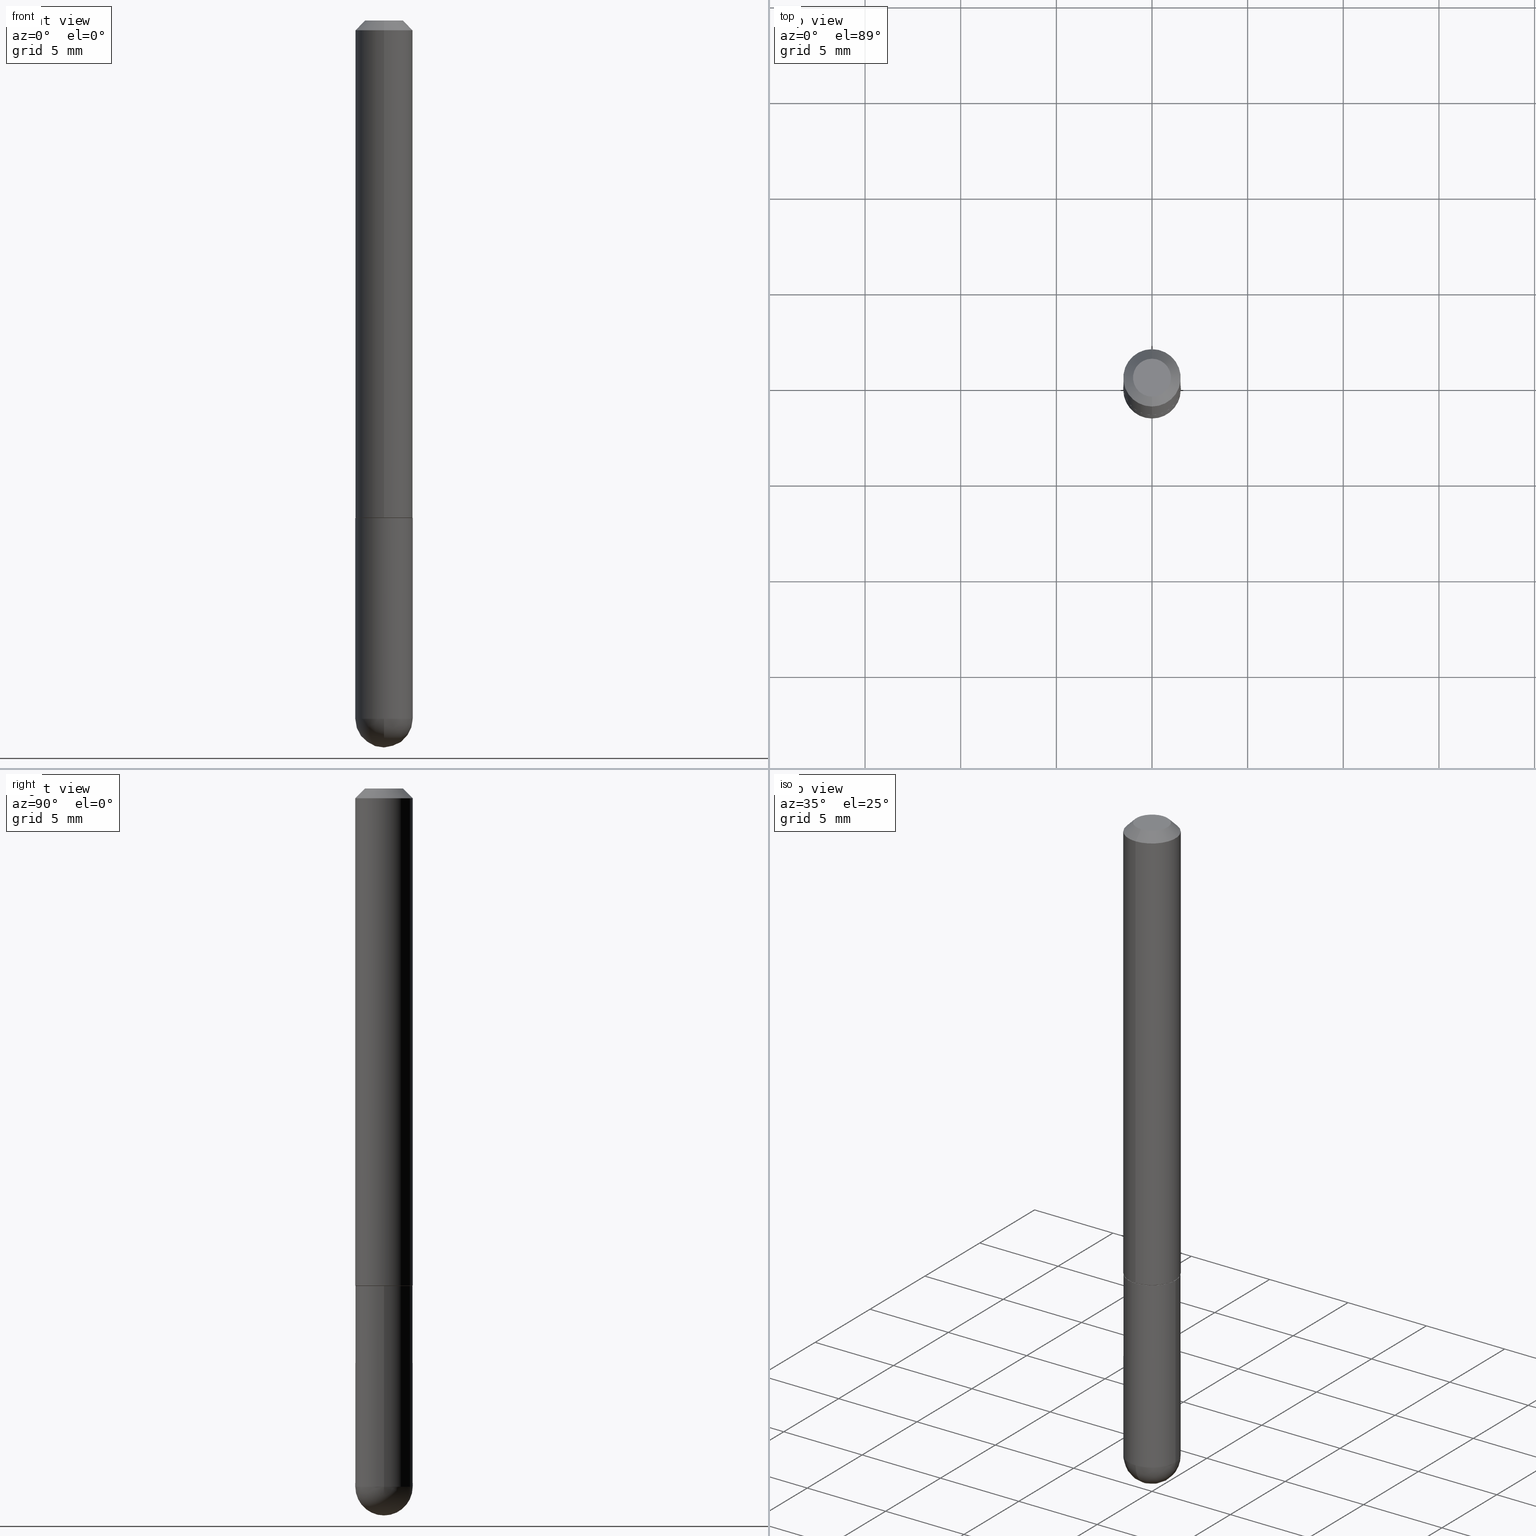
[diagram: canonical four-view strip — front | top / right | iso, engineering-drawing reading convention]
A machine part, canonical four-view strip (front | top / right | iso — engineering-drawing reading convention). The complete STEP part file that produces these views, byte-faithful:
ISO-10303-21;
HEADER;
FILE_DESCRIPTION (( 'STEP AP203' ),
    '1' );
FILE_NAME ('40522.STEP',
    '2024-04-10T11:41:17',
    ( '' ),
    ( '' ),
    'SwSTEP 2.0',
    'SolidWorks 2023',
    '' );
FILE_SCHEMA (( 'CONFIG_CONTROL_DESIGN' ));
ENDSEC;

DATA;
#1 = FACE_OUTER_BOUND ( 'NONE', #50, .T. ) ;
#2 = CIRCLE ( 'NONE', #101, 0.05905000000000025506 ) ;
#3 = DIRECTION ( 'NONE',  ( -2.460704223039053504E-29, 3.469663354762261233E-15, 1.000000000000000000 ) ) ;
#4 = EDGE_CURVE ( 'NONE', #183, #295, #330, .T. ) ;
#5 = EDGE_CURVE ( 'NONE', #81, #20, #37, .T. ) ;
#6 = CARTESIAN_POINT ( 'NONE',  ( 3.514260947928350449E-29, -5.017433257984542594E-15, -1.437049999999999939 ) ) ;
#7 = ORIENTED_EDGE ( 'NONE', *, *, #145, .T. ) ;
#8 = FACE_OUTER_BOUND ( 'NONE', #271, .T. ) ;
#9 = AXIS2_PLACEMENT_3D ( 'NONE', #278, #208, #184 ) ;
#10 = CARTESIAN_POINT ( 'NONE',  ( -4.123439461173497259E-16, -0.05905000000000367594, -1.022699999999999498 ) ) ;
#11 = MECHANICAL_CONTEXT ( 'NONE', #199, 'mechanical' ) ;
#12 = AXIS2_PLACEMENT_3D ( 'NONE', #68, #257, #74 ) ;
#13 = ADVANCED_FACE ( 'NONE', ( #147 ), #286, .T. ) ;
#14 = ORGANIZATION ( 'UNSPECIFIED', 'UNSPECIFIED', '' ) ;
#15 = DIRECTION ( 'NONE',  ( 6.982962677686266711E-15, 1.000000000000000000, 0.000000000000000000 ) ) ;
#16 = ORIENTED_EDGE ( 'NONE', *, *, #31, .T. ) ;
#17 = AXIS2_PLACEMENT_3D ( 'NONE', #36, #230, #193 ) ;
#18 = AXIS2_PLACEMENT_3D ( 'NONE', #6, #285, #359 ) ;
#19 = PERSON_AND_ORGANIZATION ( #121, #14 ) ;
#20 = VERTEX_POINT ( 'NONE', #53 ) ;
#21 = CARTESIAN_POINT ( 'NONE',  ( 2.519022913125078561E-29, -3.551894376270126226E-15, -1.023699999999999832 ) ) ;
#22 = APPROVAL ( #27, 'UNSPECIFIED' ) ;
#23 = PERSON_AND_ORGANIZATION_ROLE ( 'design_owner' ) ;
#24 = ORIENTED_EDGE ( 'NONE', *, *, #283, .F. ) ;
#25 = ADVANCED_FACE ( 'NONE', ( #290 ), #228, .F. ) ;
#26 = LOCAL_TIME ( 7, 41, 17.00000000000000000, #408 ) ;
#27 = APPROVAL_STATUS ( 'not_yet_approved' ) ;
#28 = ORIENTED_EDGE ( 'NONE', *, *, #136, .T. ) ;
#29 = LOCAL_TIME ( 7, 41, 17.00000000000000000, #141 ) ;
#30 = VERTEX_POINT ( 'NONE', #284 ) ;
#31 = EDGE_CURVE ( 'NONE', #213, #30, #220, .T. ) ;
#32 = PERSON_AND_ORGANIZATION_ROLE ( 'creator' ) ;
#33 = DATE_TIME_ROLE ( 'classification_date' ) ;
#34 = DIRECTION ( 'NONE',  ( 1.000000000000000000, -6.982962677686266711E-15, 4.876176775795935793E-29 ) ) ;
#35 = DIRECTION ( 'NONE',  ( -2.460704223039053504E-29, 3.469663354762261233E-15, 1.000000000000000000 ) ) ;
#36 = CARTESIAN_POINT ( 'NONE',  ( 0.000000000000000000, 0.000000000000000000, 0.000000000000000000 ) ) ;
#37 = CIRCLE ( 'NONE', #249, 0.05804999999999999050 ) ;
#38 = DIRECTION ( 'NONE',  ( -6.982962677686265922E-15, -1.000000000000000000, 2.353012914439503496E-15 ) ) ;
#39 = AXIS2_PLACEMENT_3D ( 'NONE', #372, #297, #390 ) ;
#40 = DIRECTION ( 'NONE',  ( -2.460704223039053504E-29, 3.469663354762261233E-15, 1.000000000000000000 ) ) ;
#41 = DIRECTION ( 'NONE',  ( -2.460704223039053224E-29, 3.469663354762261233E-15, 1.000000000000000000 ) ) ;
#42 = CARTESIAN_POINT ( 'NONE',  ( 4.921408446078123403E-31, -6.939326709524544899E-17, -0.02000000000000006981 ) ) ;
#43 = LOCAL_TIME ( 7, 41, 17.00000000000000000, #191 ) ;
#44 = AXIS2_PLACEMENT_3D ( 'NONE', #357, #293, #73 ) ;
#45 = CLOSED_SHELL ( 'NONE', ( #114, #221, #340, #13, #144, #411, #25, #172 ) ) ;
#46 = DIRECTION ( 'NONE',  ( -1.000000000000000000, 6.982962677686265922E-15, -4.883557194083112340E-29 ) ) ;
#47 = AXIS2_PLACEMENT_3D ( 'NONE', #322, #40, #168 ) ;
#48 = DIMENSIONAL_EXPONENTS ( 1.000000000000000000, 0.000000000000000000, 0.000000000000000000, 0.000000000000000000, 0.000000000000000000, 0.000000000000000000, 0.000000000000000000 ) ;
#49 = APPROVAL_ROLE ( '' ) ;
#50 = EDGE_LOOP ( 'NONE', ( #275, #51, #83, #216 ) ) ;
#51 = ORIENTED_EDGE ( 'NONE', *, *, #97, .T. ) ;
#52 = CIRCLE ( 'NONE', #336, 0.05905000000000001914 ) ;
#53 = CARTESIAN_POINT ( 'NONE',  ( 4.160227717875641831E-16, 0.05804999999999643778, -1.023699999999999832 ) ) ;
#54 = CARTESIAN_POINT ( 'NONE',  ( -0.05905000000000001914, -3.876255866812795611E-15, -1.023699999999999832 ) ) ;
#55 = EDGE_LOOP ( 'NONE', ( #337, #113, #7, #169, #152 ) ) ;
#56 = DATE_AND_TIME ( #342, #65 ) ;
#57 = VERTEX_POINT ( 'NONE', #103 ) ;
#58 = CALENDAR_DATE ( 2024, 10, 4 ) ;
#59 = VERTEX_POINT ( 'NONE', #321 ) ;
#60 = VECTOR ( 'NONE', #254, 39.37007874015748143 ) ;
#61 = DATE_AND_TIME ( #276, #171 ) ;
#62 = CC_DESIGN_PERSON_AND_ORGANIZATION_ASSIGNMENT ( #281, #189, ( #379 ) ) ;
#63 = DIRECTION ( 'NONE',  ( -2.460704223039053504E-29, 3.469663354762261233E-15, 1.000000000000000000 ) ) ;
#64 = LINE ( 'NONE', #188, #99 ) ;
#65 = LOCAL_TIME ( 7, 41, 17.00000000000000000, #374 ) ;
#66 = CIRCLE ( 'NONE', #367, 0.05905000000000001914 ) ;
#67 = DIRECTION ( 'NONE',  ( -4.937700262164715281E-15, -0.7071067811865691111, 0.7071067811865257013 ) ) ;
#68 = CARTESIAN_POINT ( 'NONE',  ( 0.000000000000000000, 0.000000000000000000, 0.000000000000000000 ) ) ;
#69 = DIRECTION ( 'NONE',  ( -1.000000000000000000, 7.105427357601001070E-15, -4.926315508542082329E-29 ) ) ;
#70 = ORIENTED_EDGE ( 'NONE', *, *, #362, .F. ) ;
#71 = EDGE_CURVE ( 'NONE', #59, #378, #351, .T. ) ;
#72 = ADVANCED_FACE ( 'NONE', ( #8 ), #173, .T. ) ;
#73 = DIRECTION ( 'NONE',  ( 1.000000000000000000, -6.982962677686270655E-15, 0.000000000000000000 ) ) ;
#74 = DIRECTION ( 'NONE',  ( 1.000000000000000000, -6.982962677686266711E-15, 4.876176775795935793E-29 ) ) ;
#75 = CARTESIAN_POINT ( 'NONE',  ( 0.000000000000000000, 0.000000000000000000, 0.000000000000000000 ) ) ;
#76 = CARTESIAN_POINT ( 'NONE',  ( 4.921408446078123403E-31, -6.939326709524544899E-17, -0.02000000000000006981 ) ) ;
#77 = CARTESIAN_POINT ( 'NONE',  ( 3.907277292852995132E-45, -5.509372769378781280E-31, -1.587869544120737693E-16 ) ) ;
#78 = CC_DESIGN_PERSON_AND_ORGANIZATION_ASSIGNMENT ( #120, #32, ( #379 ) ) ;
#79 = CONICAL_SURFACE ( 'NONE', #267, 0.05804999999999999050, 0.7853981633974824739 ) ;
#80 = DIRECTION ( 'NONE',  ( 1.000000000000000000, -6.982962677686265922E-15, 4.883557194083112340E-29 ) ) ;
#81 = VERTEX_POINT ( 'NONE', #201 ) ;
#82 = PERSON_AND_ORGANIZATION ( #121, #14 ) ;
#83 = ORIENTED_EDGE ( 'NONE', *, *, #178, .F. ) ;
#84 = DIRECTION ( 'NONE',  ( -2.460704223039053504E-29, 3.469663354762261233E-15, 1.000000000000000000 ) ) ;
#85 = ORIENTED_EDGE ( 'NONE', *, *, #409, .T. ) ;
#86 = EDGE_CURVE ( 'NONE', #59, #401, #368, .T. ) ;
#87 = CARTESIAN_POINT ( 'NONE',  ( -4.195754854663065087E-16, -0.05905000000000539678, -1.437049999999999716 ) ) ;
#88 = EDGE_LOOP ( 'NONE', ( #388, #395, #159, #311 ) ) ;
#89 = DIRECTION ( 'NONE',  ( -6.982962677686265922E-15, -1.000000000000000000, 2.353012914439503496E-15 ) ) ;
#90 = APPROVAL_ROLE ( '' ) ;
#91 = EDGE_LOOP ( 'NONE', ( #92, #119, #28, #118 ) ) ;
#92 = ORIENTED_EDGE ( 'NONE', *, *, #97, .F. ) ;
#93 = FACE_OUTER_BOUND ( 'NONE', #88, .T. ) ;
#94 = APPROVAL_DATE_TIME ( #186, #22 ) ;
#95 = AXIS2_PLACEMENT_3D ( 'NONE', #76, #224, #354 ) ;
#96 = PERSON_AND_ORGANIZATION ( #121, #14 ) ;
#97 = EDGE_CURVE ( 'NONE', #295, #213, #64, .T. ) ;
#98 = DIRECTION ( 'NONE',  ( 1.000000000000000000, -6.982962677686270655E-15, 0.000000000000000000 ) ) ;
#99 = VECTOR ( 'NONE', #310, 39.37007874015748143 ) ;
#100 = FACE_OUTER_BOUND ( 'NONE', #343, .T. ) ;
#101 = AXIS2_PLACEMENT_3D ( 'NONE', #151, #80, #15 ) ;
#102 = CARTESIAN_POINT ( 'NONE',  ( 0.05905000000000001914, -4.123439461173741806E-16, 2.879382386107500921E-30 ) ) ;
#103 = CARTESIAN_POINT ( 'NONE',  ( 0.05905000000000001914, -3.986573392691101744E-15, -1.023699999999999832 ) ) ;
#104 = CARTESIAN_POINT ( 'NONE',  ( 3.183141170014464762E-29, -5.491615626124592102E-15, -1.437049999999999939 ) ) ;
#105 = DIRECTION ( 'NONE',  ( -2.445468806185136877E-29, 3.491481338843145188E-15, 1.000000000000000000 ) ) ;
#106 = DIRECTION ( 'NONE',  ( 5.024295867788231995E-15, 0.7071067811865739960, 0.7071067811865208164 ) ) ;
#107 = PRODUCT_DEFINITION ( 'UNKNOWN', '', #379, #177 ) ;
#108 = CARTESIAN_POINT ( 'NONE',  ( 2.519022913125078561E-29, -3.551894376270126226E-15, -1.023699999999999832 ) ) ;
#109 = CC_DESIGN_APPROVAL ( #312, ( #327 ) ) ;
#110 = AXIS2_PLACEMENT_3D ( 'NONE', #42, #35, #174 ) ;
#111 = DIRECTION ( 'NONE',  ( 1.000000000000000000, -6.982962677686262766E-15, 0.000000000000000000 ) ) ;
#112 = ORIENTED_EDGE ( 'NONE', *, *, #232, .T. ) ;
#113 = ORIENTED_EDGE ( 'NONE', *, *, #71, .T. ) ;
#114 = ADVANCED_FACE ( 'NONE', ( #93 ), #79, .T. ) ;
#115 = CIRCLE ( 'NONE', #246, 0.03905000000000016097 ) ;
#116 = DATE_AND_TIME ( #394, #29 ) ;
#117 = ORIENTED_EDGE ( 'NONE', *, *, #298, .T. ) ;
#118 = ORIENTED_EDGE ( 'NONE', *, *, #31, .F. ) ;
#119 = ORIENTED_EDGE ( 'NONE', *, *, #362, .T. ) ;
#120 = PERSON_AND_ORGANIZATION ( #121, #14 ) ;
#121 = PERSON ( 'UNSPECIFIED', 'UNSPECIFIED', 'UNSPECIFIED', ('UNSPECIFIED'), ('UNSPECIFIED'), ('UNSPECIFIED') ) ;
#122 = CARTESIAN_POINT ( 'NONE',  ( 0.000000000000000000, 0.000000000000000000, 0.000000000000000000 ) ) ;
#123 = VECTOR ( 'NONE', #273, 39.37007874015748143 ) ;
#124 = DIRECTION ( 'NONE',  ( -6.982962677686265922E-15, -1.000000000000000000, 3.469663354762261233E-15 ) ) ;
#125 = CC_DESIGN_SECURITY_CLASSIFICATION ( #327, ( #379 ) ) ;
#126 = CARTESIAN_POINT ( 'NONE',  ( -0.05905000000000001914, 4.195754854663392958E-16, -2.904631170795522943E-30 ) ) ;
#127 = PLANE ( 'NONE',  #182 ) ;
#128 = CIRCLE ( 'NONE', #319, 0.05905000000000001914 ) ;
#129 = CARTESIAN_POINT ( 'NONE',  ( 4.123439461173991776E-16, 0.05904999999999643867, -1.023700000000000054 ) ) ;
#130 = CARTESIAN_POINT ( 'NONE',  ( 2.726846925636498029E-16, 0.03905000000000016097, -2.148838312095037302E-16 ) ) ;
#131 = AXIS2_PLACEMENT_3D ( 'NONE', #240, #46, #262 ) ;
#132 = CC_DESIGN_DATE_AND_TIME_ASSIGNMENT ( #403, #33, ( #327 ) ) ;
#133 = CARTESIAN_POINT ( 'NONE',  ( 2.519022913125078281E-29, -3.551894376270126226E-15, -1.023699999999999832 ) ) ;
#134 = CYLINDRICAL_SURFACE ( 'NONE', #12, 0.05905000000000001914 ) ;
#135 = DIRECTION ( 'NONE',  ( -7.105427357601001070E-15, -1.000000000000000000, 0.000000000000000000 ) ) ;
#136 = EDGE_CURVE ( 'NONE', #183, #30, #314, .T. ) ;
#137 = AXIS2_PLACEMENT_3D ( 'NONE', #338, #150, #371 ) ;
#138 = DIRECTION ( 'NONE',  ( -2.445468806185136597E-29, 3.491481338843145583E-15, 1.000000000000000000 ) ) ;
#139 = FACE_OUTER_BOUND ( 'NONE', #259, .T. ) ;
#140 = EDGE_LOOP ( 'NONE', ( #365, #211 ) ) ;
#141 = COORDINATED_UNIVERSAL_TIME_OFFSET ( 5, 0, .BEHIND. ) ;
#142 =( NAMED_UNIT ( * ) SI_UNIT ( $, .STERADIAN. ) SOLID_ANGLE_UNIT ( ) );
#143 = AXIS2_PLACEMENT_3D ( 'NONE', #328, #302, #265 ) ;
#144 = ADVANCED_FACE ( 'NONE', ( #248 ), #406, .T. ) ;
#145 = EDGE_CURVE ( 'NONE', #378, #335, #128, .T. ) ;
#146 = ORIENTED_EDGE ( 'NONE', *, *, #178, .T. ) ;
#147 = FACE_OUTER_BOUND ( 'NONE', #303, .T. ) ;
#148 = APPLICATION_PROTOCOL_DEFINITION ( 'international standard', 'config_control_design', 1994, #199 ) ;
#149 = ORIENTED_EDGE ( 'NONE', *, *, #288, .F. ) ;
#150 = DIRECTION ( 'NONE',  ( 2.460704223039053504E-29, -3.469663354762261233E-15, -1.000000000000000000 ) ) ;
#151 = CARTESIAN_POINT ( 'NONE',  ( 3.183141170014464762E-29, -5.491615626124592102E-15, -1.437049999999999939 ) ) ;
#152 = ORIENTED_EDGE ( 'NONE', *, *, #405, .F. ) ;
#153 = CC_DESIGN_APPROVAL ( #22, ( #379 ) ) ;
#154 = DIRECTION ( 'NONE',  ( -2.460704223039053504E-29, 3.469663354762261233E-15, 1.000000000000000000 ) ) ;
#155 = APPROVAL_STATUS ( 'not_yet_approved' ) ;
#156 = ORIENTED_EDGE ( 'NONE', *, *, #409, .F. ) ;
#157 = VECTOR ( 'NONE', #67, 39.37007874015748854 ) ;
#158 = EDGE_CURVE ( 'NONE', #81, #183, #163, .T. ) ;
#159 = ORIENTED_EDGE ( 'NONE', *, *, #4, .F. ) ;
#160 = DIRECTION ( 'NONE',  ( -2.460704223039053504E-29, 3.469663354762261233E-15, 1.000000000000000000 ) ) ;
#161 = DATE_TIME_ROLE ( 'creation_date' ) ;
#162 = SECURITY_CLASSIFICATION_LEVEL ( 'unclassified' ) ;
#163 = LINE ( 'NONE', #352, #157 ) ;
#164 = CARTESIAN_POINT ( 'NONE',  ( 3.425143193405121643E-16, 0.03905000000000016097, -2.942773084155405902E-16 ) ) ;
#165 = CARTESIAN_POINT ( 'NONE',  ( 4.123439461173745750E-16, 0.05904999999999994975, -0.02000000000000027450 ) ) ;
#166 = CARTESIAN_POINT ( 'NONE',  ( -4.051124067684085231E-16, -0.05905000000000008159, -0.01999999999999986511 ) ) ;
#167 = PRODUCT_DEFINITION_SHAPE ( 'NONE', 'NONE',  #107 ) ;
#168 = DIRECTION ( 'NONE',  ( -6.982962677686265133E-15, -1.000000000000000000, 2.313165108945179540E-15 ) ) ;
#169 = ORIENTED_EDGE ( 'NONE', *, *, #288, .T. ) ;
#170 = ADVANCED_FACE ( 'NONE', ( #195 ), #219, .F. ) ;
#171 = LOCAL_TIME ( 7, 41, 17.00000000000000000, #247 ) ;
#172 = ADVANCED_FACE ( 'NONE', ( #258 ), #127, .F. ) ;
#173 = CYLINDRICAL_SURFACE ( 'NONE', #412, 0.05905000000000001914 ) ;
#174 = DIRECTION ( 'NONE',  ( -6.982962677686265922E-15, -1.000000000000000000, 3.469747663417776213E-15 ) ) ;
#175 = DIRECTION ( 'NONE',  ( -2.445468806185136597E-29, 3.491481338843145583E-15, 1.000000000000000000 ) ) ;
#176 = DIRECTION ( 'NONE',  ( 1.000000000000000000, -6.982962677686270655E-15, 0.000000000000000000 ) ) ;
#177 = DESIGN_CONTEXT ( 'detailed design', #264, 'design' ) ;
#178 = EDGE_CURVE ( 'NONE', #30, #213, #233, .T. ) ;
#179 = DIRECTION ( 'NONE',  ( -6.982962677686265922E-15, -1.000000000000000000, 3.469663354762261627E-15 ) ) ;
#180 = VERTEX_POINT ( 'NONE', #296 ) ;
#181 = APPROVAL_PERSON_ORGANIZATION ( #19, #376, #49 ) ;
#182 = AXIS2_PLACEMENT_3D ( 'NONE', #130, #386, #318 ) ;
#183 = VERTEX_POINT ( 'NONE', #10 ) ;
#184 = DIRECTION ( 'NONE',  ( -6.982962677686265133E-15, -1.000000000000000000, 2.313165108945179540E-15 ) ) ;
#185 = ORIENTED_EDGE ( 'NONE', *, *, #324, .T. ) ;
#186 = DATE_AND_TIME ( #58, #43 ) ;
#187 = ORIENTED_EDGE ( 'NONE', *, *, #192, .F. ) ;
#188 = CARTESIAN_POINT ( 'NONE',  ( 4.195754854663395916E-16, 0.05905000000000006771, -2.048836210987117645E-16 ) ) ;
#189 = PERSON_AND_ORGANIZATION_ROLE ( 'design_supplier' ) ;
#190 = VERTEX_POINT ( 'NONE', #164 ) ;
#191 = COORDINATED_UNIVERSAL_TIME_OFFSET ( 5, 0, .BEHIND. ) ;
#192 = EDGE_CURVE ( 'NONE', #190, #213, #317, .T. ) ;
#193 = DIRECTION ( 'NONE',  ( -6.982962677686265922E-15, -1.000000000000000000, 3.469663354762261233E-15 ) ) ;
#194 = ADVANCED_FACE ( 'NONE', ( #139 ), #196, .T. ) ;
#195 = FACE_OUTER_BOUND ( 'NONE', #140, .T. ) ;
#196 = SPHERICAL_SURFACE ( 'NONE', #347, 0.05905000000000025506 ) ;
#197 = CARTESIAN_POINT ( 'NONE',  ( 4.195754854663525585E-16, 0.05904999999999657745, -1.022699999999999942 ) ) ;
#198 = CIRCLE ( 'NONE', #407, 0.05905000000000025506 ) ;
#199 = APPLICATION_CONTEXT ( 'configuration controlled 3d designs of mechanical parts and assemblies' ) ;
#200 = DIRECTION ( 'NONE',  ( -2.445468806185136597E-29, 3.491481338843145583E-15, 1.000000000000000000 ) ) ;
#201 = CARTESIAN_POINT ( 'NONE',  ( -4.053609834396624790E-16, -0.05805000000000353627, -1.023699999999999610 ) ) ;
#202 = CARTESIAN_POINT ( 'NONE',  ( 3.183141170014464762E-29, -5.491615626124592102E-15, -1.437049999999999939 ) ) ;
#203 = CARTESIAN_POINT ( 'NONE',  ( -3.365074267906939806E-16, -0.03905000000000016097, -2.329660040860689912E-17 ) ) ;
#204 = CLOSED_SHELL ( 'NONE', ( #72, #194, #396, #170, #348 ) ) ;
#205 = AXIS2_PLACEMENT_3D ( 'NONE', #320, #3, #38 ) ;
#206 = APPLICATION_PROTOCOL_DEFINITION ( 'international standard', 'config_control_design', 1994, #264 ) ;
#207 = ORIENTED_EDGE ( 'NONE', *, *, #399, .F. ) ;
#208 = DIRECTION ( 'NONE',  ( -2.460704223039053504E-29, 3.469663354762261233E-15, 1.000000000000000000 ) ) ;
#209 = ORIENTED_EDGE ( 'NONE', *, *, #377, .T. ) ;
#210 = FACE_OUTER_BOUND ( 'NONE', #333, .T. ) ;
#211 = ORIENTED_EDGE ( 'NONE', *, *, #405, .T. ) ;
#212 = APPROVAL_DATE_TIME ( #116, #376 ) ;
#213 = VERTEX_POINT ( 'NONE', #361 ) ;
#214 = CC_DESIGN_APPROVAL ( #376, ( #107 ) ) ;
#215 = APPROVAL_ROLE ( '' ) ;
#216 = ORIENTED_EDGE ( 'NONE', *, *, #136, .F. ) ;
#217 = EDGE_CURVE ( 'NONE', #20, #295, #261, .T. ) ;
#218 = PERSON_AND_ORGANIZATION ( #121, #14 ) ;
#219 = PLANE ( 'NONE',  #358 ) ;
#220 = CIRCLE ( 'NONE', #242, 0.05905000000000001914 ) ;
#221 = ADVANCED_FACE ( 'NONE', ( #1 ), #355, .T. ) ;
#222 = DIRECTION ( 'NONE',  ( -2.445468806185136597E-29, 3.491481338843145583E-15, 1.000000000000000000 ) ) ;
#223 = DIRECTION ( 'NONE',  ( -6.982962677686265922E-15, -1.000000000000000000, 3.469663354762261233E-15 ) ) ;
#224 = DIRECTION ( 'NONE',  ( 2.460704223039053504E-29, -3.469663354762261233E-15, -1.000000000000000000 ) ) ;
#225 = CARTESIAN_POINT ( 'NONE',  ( 2.503426416891723784E-29, -3.574229446573727613E-15, -1.023699999999999832 ) ) ;
#226 = MANIFOLD_SOLID_BREP ( 'Body-Move/Copy2[1]', #204 ) ;
#227 = MANIFOLD_SOLID_BREP ( 'Body-Move/Copy2[2]', #45 ) ;
#228 = PLANE ( 'NONE',  #400 ) ;
#229 = LINE ( 'NONE', #166, #292 ) ;
#230 = DIRECTION ( 'NONE',  ( -2.460704223039053504E-29, 3.469663354762261233E-15, 1.000000000000000000 ) ) ;
#231 = FACE_OUTER_BOUND ( 'NONE', #356, .T. ) ;
#232 = EDGE_CURVE ( 'NONE', #180, #378, #198, .T. ) ;
#233 = CIRCLE ( 'NONE', #110, 0.05905000000000001914 ) ;
#234 = CC_DESIGN_PERSON_AND_ORGANIZATION_ASSIGNMENT ( #218, #315, ( #107 ) ) ;
#235 = ORIENTED_EDGE ( 'NONE', *, *, #283, .T. ) ;
#236 = CONICAL_SURFACE ( 'NONE', #95, 0.05905000000000001914, 0.7853981633974469467 ) ;
#237 =( CONVERSION_BASED_UNIT ( 'INCH', #397 ) LENGTH_UNIT ( ) NAMED_UNIT ( #48 ) );
#238 = VERTEX_POINT ( 'NONE', #287 ) ;
#239 = UNCERTAINTY_MEASURE_WITH_UNIT (LENGTH_MEASURE( 1.000000000000000082E-05 ), #237, 'distance_accuracy_value', 'NONE');
#240 = CARTESIAN_POINT ( 'NONE',  ( 3.183141170014464762E-29, -5.491615626124592102E-15, -1.437049999999999939 ) ) ;
#241 = ORIENTED_EDGE ( 'NONE', *, *, #399, .T. ) ;
#242 = AXIS2_PLACEMENT_3D ( 'NONE', #360, #385, #353 ) ;
#243 = ORIENTED_EDGE ( 'NONE', *, *, #377, .F. ) ;
#244 = PERSON_AND_ORGANIZATION ( #121, #14 ) ;
#245 = ORIENTED_EDGE ( 'NONE', *, *, #298, .F. ) ;
#246 = AXIS2_PLACEMENT_3D ( 'NONE', #77, #392, #179 ) ;
#247 = COORDINATED_UNIVERSAL_TIME_OFFSET ( 5, 0, .BEHIND. ) ;
#248 = FACE_OUTER_BOUND ( 'NONE', #91, .T. ) ;
#249 = AXIS2_PLACEMENT_3D ( 'NONE', #307, #154, #89 ) ;
#250 = CALENDAR_DATE ( 2024, 10, 4 ) ;
#251 = CC_DESIGN_DATE_AND_TIME_ASSIGNMENT ( #56, #161, ( #107 ) ) ;
#252 = DIRECTION ( 'NONE',  ( -2.445468806185136877E-29, 3.491481338843145188E-15, 1.000000000000000000 ) ) ;
#253 = VECTOR ( 'NONE', #252, 39.37007874015748143 ) ;
#254 = DIRECTION ( 'NONE',  ( 4.937700262164540942E-15, 0.7071067811865441310, -0.7071067811865509034 ) ) ;
#255 = DIRECTION ( 'NONE',  ( 1.000000000000000000, -6.982962677686262766E-15, 0.000000000000000000 ) ) ;
#256 = CIRCLE ( 'NONE', #47, 0.05905000000000013016 ) ;
#257 = DIRECTION ( 'NONE',  ( -2.445468806185136597E-29, 3.491481338843145583E-15, 1.000000000000000000 ) ) ;
#258 = FACE_OUTER_BOUND ( 'NONE', #306, .T. ) ;
#259 = EDGE_LOOP ( 'NONE', ( #243, #112, #375, #269 ) ) ;
#260 = PRODUCT ( '40522', '40522', '', ( #11 ) ) ;
#261 = LINE ( 'NONE', #389, #391 ) ;
#262 = DIRECTION ( 'NONE',  ( 6.982962677686265922E-15, 1.000000000000000000, -4.626330217890349615E-15 ) ) ;
#263 = CC_DESIGN_PERSON_AND_ORGANIZATION_ASSIGNMENT ( #308, #349, ( #327 ) ) ;
#264 = APPLICATION_CONTEXT ( 'configuration controlled 3d designs of mechanical parts and assemblies' ) ;
#265 = DIRECTION ( 'NONE',  ( 1.000000000000000000, 0.000000000000000000, 0.000000000000000000 ) ) ;
#266 = EDGE_LOOP ( 'NONE', ( #398, #245 ) ) ;
#267 = AXIS2_PLACEMENT_3D ( 'NONE', #21, #160, #341 ) ;
#268 = SPHERICAL_SURFACE ( 'NONE', #131, 0.05905000000000025506 ) ;
#269 = ORIENTED_EDGE ( 'NONE', *, *, #366, .F. ) ;
#270 = APPROVAL_STATUS ( 'not_yet_approved' ) ;
#271 = EDGE_LOOP ( 'NONE', ( #301, #329, #277, #149, #235 ) ) ;
#272 = EDGE_CURVE ( 'NONE', #57, #401, #52, .T. ) ;
#273 = DIRECTION ( 'NONE',  ( -2.460704223039053504E-29, 3.469663354762261233E-15, 1.000000000000000000 ) ) ;
#274 = CARTESIAN_POINT ( 'NONE',  ( 2.503426416891723784E-29, -3.574229446573727613E-15, -1.023699999999999832 ) ) ;
#275 = ORIENTED_EDGE ( 'NONE', *, *, #4, .T. ) ;
#276 = CALENDAR_DATE ( 2024, 10, 4 ) ;
#277 = ORIENTED_EDGE ( 'NONE', *, *, #272, .F. ) ;
#278 = CARTESIAN_POINT ( 'NONE',  ( 2.516562208902038878E-29, -3.548424712915363391E-15, -1.022699999999999720 ) ) ;
#279 = CARTESIAN_POINT ( 'NONE',  ( -4.123439461173744764E-16, -0.05905000000000006771, 2.048836210987117645E-16 ) ) ;
#280 = CIRCLE ( 'NONE', #18, 0.05905000000000001914 ) ;
#281 = PERSON_AND_ORGANIZATION ( #121, #14 ) ;
#282 = PRODUCT_RELATED_PRODUCT_CATEGORY ( 'detail', '', ( #260 ) ) ;
#283 = EDGE_CURVE ( 'NONE', #335, #238, #280, .T. ) ;
#284 = CARTESIAN_POINT ( 'NONE',  ( -4.051124067684085231E-16, -0.05905000000000008159, -0.01999999999999986511 ) ) ;
#285 = DIRECTION ( 'NONE',  ( -2.445468806185136597E-29, 3.491481338843145583E-15, 1.000000000000000000 ) ) ;
#286 = CONICAL_SURFACE ( 'NONE', #137, 0.05905000000000001914, 0.7853981633974469467 ) ;
#287 = CARTESIAN_POINT ( 'NONE',  ( 4.123439461174084467E-16, 0.05904999999999487742, -1.437050000000000161 ) ) ;
#288 = EDGE_CURVE ( 'NONE', #335, #57, #383, .T. ) ;
#289 = ADVANCED_BREP_SHAPE_REPRESENTATION ( '40522', ( #226, #227, #143 ), #339 ) ;
#290 = FACE_OUTER_BOUND ( 'NONE', #266, .T. ) ;
#291 = FACE_OUTER_BOUND ( 'NONE', #55, .T. ) ;
#292 = VECTOR ( 'NONE', #410, 39.37007874015748143 ) ;
#293 = DIRECTION ( 'NONE',  ( -2.445468806185136597E-29, 3.491481338843145583E-15, 1.000000000000000000 ) ) ;
#294 = DIRECTION ( 'NONE',  ( 6.982962677686265922E-15, 1.000000000000000000, -4.626330217890349615E-15 ) ) ;
#295 = VERTEX_POINT ( 'NONE', #197 ) ;
#296 = CARTESIAN_POINT ( 'NONE',  ( 3.330070981488499955E-29, -5.694171829508798064E-15, -1.496100000000000207 ) ) ;
#297 = DIRECTION ( 'NONE',  ( -2.460704223039053504E-29, 3.469663354762261233E-15, 1.000000000000000000 ) ) ;
#298 = EDGE_CURVE ( 'NONE', #20, #81, #316, .T. ) ;
#299 = CONICAL_SURFACE ( 'NONE', #402, 0.05804999999999999050, 0.7853981633974824739 ) ;
#300 =( LENGTH_UNIT ( ) NAMED_UNIT ( * ) SI_UNIT ( $, .METRE. ) );
#301 = ORIENTED_EDGE ( 'NONE', *, *, #366, .T. ) ;
#302 = DIRECTION ( 'NONE',  ( 0.000000000000000000, 0.000000000000000000, 1.000000000000000000 ) ) ;
#303 = EDGE_LOOP ( 'NONE', ( #404, #207, #370, #16 ) ) ;
#304 = CIRCLE ( 'NONE', #39, 0.03905000000000016097 ) ;
#305 =( NAMED_UNIT ( * ) PLANE_ANGLE_UNIT ( ) SI_UNIT ( $, .RADIAN. ) );
#306 = EDGE_LOOP ( 'NONE', ( #241, #85 ) ) ;
#307 = CARTESIAN_POINT ( 'NONE',  ( 2.519022913125078561E-29, -3.551894376270126226E-15, -1.023699999999999832 ) ) ;
#308 = PERSON_AND_ORGANIZATION ( #121, #14 ) ;
#309 = ORIENTED_EDGE ( 'NONE', *, *, #145, .F. ) ;
#310 = DIRECTION ( 'NONE',  ( -2.460704223039053504E-29, 3.469663354762261233E-15, 1.000000000000000000 ) ) ;
#311 = ORIENTED_EDGE ( 'NONE', *, *, #158, .F. ) ;
#312 = APPROVAL ( #155, 'UNSPECIFIED' ) ;
#313 = CIRCLE ( 'NONE', #323, 0.05905000000000001914 ) ;
#314 = LINE ( 'NONE', #279, #123 ) ;
#315 = PERSON_AND_ORGANIZATION_ROLE ( 'creator' ) ;
#316 = CIRCLE ( 'NONE', #205, 0.05804999999999999050 ) ;
#317 = LINE ( 'NONE', #165, #60 ) ;
#318 = DIRECTION ( 'NONE',  ( 6.982962677686265922E-15, 1.000000000000000000, -3.469663354762261233E-15 ) ) ;
#319 = AXIS2_PLACEMENT_3D ( 'NONE', #381, #222, #98 ) ;
#320 = CARTESIAN_POINT ( 'NONE',  ( 2.519022913125078561E-29, -3.551894376270126226E-15, -1.023699999999999832 ) ) ;
#321 = CARTESIAN_POINT ( 'NONE',  ( -0.05905000000000001914, -3.876255866812795611E-15, -1.437049999999999939 ) ) ;
#322 = CARTESIAN_POINT ( 'NONE',  ( 2.516562208902038878E-29, -3.548424712915363391E-15, -1.022699999999999720 ) ) ;
#323 = AXIS2_PLACEMENT_3D ( 'NONE', #369, #334, #176 ) ;
#324 = EDGE_CURVE ( 'NONE', #373, #30, #229, .T. ) ;
#325 = DIRECTION ( 'NONE',  ( 2.438088387897960049E-29, -3.491481338843145188E-15, -1.000000000000000000 ) ) ;
#326 = APPROVAL_PERSON_ORGANIZATION ( #96, #312, #90 ) ;
#327 = SECURITY_CLASSIFICATION ( '', '', #162 ) ;
#328 = CARTESIAN_POINT ( 'NONE',  ( 0.000000000000000000, 0.000000000000000000, 0.000000000000000000 ) ) ;
#329 = ORIENTED_EDGE ( 'NONE', *, *, #86, .T. ) ;
#330 = CIRCLE ( 'NONE', #9, 0.05905000000000013016 ) ;
#331 = ORIENTED_EDGE ( 'NONE', *, *, #217, .F. ) ;
#332 = DIRECTION ( 'NONE',  ( -6.982962677686265922E-15, -1.000000000000000000, 2.353012914439503496E-15 ) ) ;
#333 = EDGE_LOOP ( 'NONE', ( #346, #209, #24, #309 ) ) ;
#334 = DIRECTION ( 'NONE',  ( -2.445468806185136597E-29, 3.491481338843145583E-15, 1.000000000000000000 ) ) ;
#335 = VERTEX_POINT ( 'NONE', #382 ) ;
#336 = AXIS2_PLACEMENT_3D ( 'NONE', #225, #200, #255 ) ;
#337 = ORIENTED_EDGE ( 'NONE', *, *, #86, .F. ) ;
#338 = CARTESIAN_POINT ( 'NONE',  ( 4.921408446078123403E-31, -6.939326709524544899E-17, -0.02000000000000006981 ) ) ;
#339 =( GEOMETRIC_REPRESENTATION_CONTEXT ( 3 ) GLOBAL_UNCERTAINTY_ASSIGNED_CONTEXT ( ( #239 ) ) GLOBAL_UNIT_ASSIGNED_CONTEXT ( ( #237, #305, #142 ) ) REPRESENTATION_CONTEXT ( 'NONE', 'WORKASPACE' ) );
#340 = ADVANCED_FACE ( 'NONE', ( #100 ), #236, .T. ) ;
#341 = DIRECTION ( 'NONE',  ( -6.982962677686265922E-15, -1.000000000000000000, 2.353012914439503496E-15 ) ) ;
#342 = CALENDAR_DATE ( 2024, 10, 4 ) ;
#343 = EDGE_LOOP ( 'NONE', ( #156, #185, #146, #187 ) ) ;
#344 = CC_DESIGN_PERSON_AND_ORGANIZATION_ASSIGNMENT ( #82, #23, ( #260 ) ) ;
#345 = SHAPE_DEFINITION_REPRESENTATION ( #167, #289 ) ;
#346 = ORIENTED_EDGE ( 'NONE', *, *, #232, .F. ) ;
#347 = AXIS2_PLACEMENT_3D ( 'NONE', #202, #363, #294 ) ;
#348 = ADVANCED_FACE ( 'NONE', ( #291 ), #134, .T. ) ;
#349 = PERSON_AND_ORGANIZATION_ROLE ( 'classification_officer' ) ;
#350 = APPROVAL_PERSON_ORGANIZATION ( #244, #22, #215 ) ;
#351 = CIRCLE ( 'NONE', #44, 0.05905000000000001914 ) ;
#352 = CARTESIAN_POINT ( 'NONE',  ( -4.053609834396624790E-16, -0.05805000000000353627, -1.023699999999999610 ) ) ;
#353 = DIRECTION ( 'NONE',  ( -6.982962677686265922E-15, -1.000000000000000000, 3.469747663417776213E-15 ) ) ;
#354 = DIRECTION ( 'NONE',  ( 6.982962677686265922E-15, 1.000000000000000000, -3.469747663417776213E-15 ) ) ;
#355 = CYLINDRICAL_SURFACE ( 'NONE', #17, 0.05905000000000006771 ) ;
#356 = EDGE_LOOP ( 'NONE', ( #331, #117, #393, #70 ) ) ;
#357 = CARTESIAN_POINT ( 'NONE',  ( 3.514260947928350449E-29, -5.017433257984542594E-15, -1.437049999999999939 ) ) ;
#358 = AXIS2_PLACEMENT_3D ( 'NONE', #129, #325, #387 ) ;
#359 = DIRECTION ( 'NONE',  ( 1.000000000000000000, -6.982962677686270655E-15, 0.000000000000000000 ) ) ;
#360 = CARTESIAN_POINT ( 'NONE',  ( 4.921408446078123403E-31, -6.939326709524544899E-17, -0.02000000000000006981 ) ) ;
#361 = CARTESIAN_POINT ( 'NONE',  ( 4.123439461173745750E-16, 0.05904999999999994975, -0.02000000000000027450 ) ) ;
#362 = EDGE_CURVE ( 'NONE', #295, #183, #256, .T. ) ;
#363 = DIRECTION ( 'NONE',  ( -1.000000000000000000, 6.982962677686265922E-15, -4.883557194083112340E-29 ) ) ;
#364 = AXIS2_PLACEMENT_3D ( 'NONE', #122, #63, #124 ) ;
#365 = ORIENTED_EDGE ( 'NONE', *, *, #272, .T. ) ;
#366 = EDGE_CURVE ( 'NONE', #238, #59, #313, .T. ) ;
#367 = AXIS2_PLACEMENT_3D ( 'NONE', #274, #175, #111 ) ;
#368 = LINE ( 'NONE', #126, #253 ) ;
#369 = CARTESIAN_POINT ( 'NONE',  ( 3.514260947928350449E-29, -5.017433257984542594E-15, -1.437049999999999939 ) ) ;
#370 = ORIENTED_EDGE ( 'NONE', *, *, #192, .T. ) ;
#371 = DIRECTION ( 'NONE',  ( 6.982962677686265922E-15, 1.000000000000000000, -3.469747663417776213E-15 ) ) ;
#372 = CARTESIAN_POINT ( 'NONE',  ( 3.907277292852995132E-45, -5.509372769378781280E-31, -1.587869544120737693E-16 ) ) ;
#373 = VERTEX_POINT ( 'NONE', #203 ) ;
#374 = COORDINATED_UNIVERSAL_TIME_OFFSET ( 5, 0, .BEHIND. ) ;
#375 = ORIENTED_EDGE ( 'NONE', *, *, #71, .F. ) ;
#376 = APPROVAL ( #270, 'UNSPECIFIED' ) ;
#377 = EDGE_CURVE ( 'NONE', #180, #238, #2, .T. ) ;
#378 = VERTEX_POINT ( 'NONE', #87 ) ;
#379 = PRODUCT_DEFINITION_FORMATION_WITH_SPECIFIED_SOURCE ( 'ANY', '', #260, .NOT_KNOWN. ) ;
#380 = APPROVAL_DATE_TIME ( #61, #312 ) ;
#381 = CARTESIAN_POINT ( 'NONE',  ( 3.514260947928350449E-29, -5.017433257984542594E-15, -1.437049999999999939 ) ) ;
#382 = CARTESIAN_POINT ( 'NONE',  ( 0.05905000000000001914, -4.708175298396508446E-15, -1.437049999999999939 ) ) ;
#383 = LINE ( 'NONE', #102, #384 ) ;
#384 = VECTOR ( 'NONE', #105, 39.37007874015748143 ) ;
#385 = DIRECTION ( 'NONE',  ( -2.460704223039053504E-29, 3.469663354762261233E-15, 1.000000000000000000 ) ) ;
#386 = DIRECTION ( 'NONE',  ( 2.460704223039053224E-29, -3.469663354762261233E-15, -1.000000000000000000 ) ) ;
#387 = DIRECTION ( 'NONE',  ( -1.000000000000000000, 6.982962677686265922E-15, -4.876176775795935793E-29 ) ) ;
#388 = ORIENTED_EDGE ( 'NONE', *, *, #5, .T. ) ;
#389 = CARTESIAN_POINT ( 'NONE',  ( 4.124700581087631860E-16, 0.05804999999999643778, -1.023699999999999832 ) ) ;
#390 = DIRECTION ( 'NONE',  ( -6.982962677686265922E-15, -1.000000000000000000, 3.469663354762261627E-15 ) ) ;
#391 = VECTOR ( 'NONE', #106, 39.37007874015748854 ) ;
#392 = DIRECTION ( 'NONE',  ( -2.460704223039053504E-29, 3.469663354762261233E-15, 1.000000000000000000 ) ) ;
#393 = ORIENTED_EDGE ( 'NONE', *, *, #158, .T. ) ;
#394 = CALENDAR_DATE ( 2024, 10, 4 ) ;
#395 = ORIENTED_EDGE ( 'NONE', *, *, #217, .T. ) ;
#396 = ADVANCED_FACE ( 'NONE', ( #210 ), #268, .T. ) ;
#397 = LENGTH_MEASURE_WITH_UNIT ( LENGTH_MEASURE( 0.02539999999999999897 ), #300 );
#398 = ORIENTED_EDGE ( 'NONE', *, *, #5, .F. ) ;
#399 = EDGE_CURVE ( 'NONE', #190, #373, #115, .T. ) ;
#400 = AXIS2_PLACEMENT_3D ( 'NONE', #133, #41, #223 ) ;
#401 = VERTEX_POINT ( 'NONE', #54 ) ;
#402 = AXIS2_PLACEMENT_3D ( 'NONE', #108, #84, #332 ) ;
#403 = DATE_AND_TIME ( #250, #26 ) ;
#404 = ORIENTED_EDGE ( 'NONE', *, *, #324, .F. ) ;
#405 = EDGE_CURVE ( 'NONE', #401, #57, #66, .T. ) ;
#406 = CYLINDRICAL_SURFACE ( 'NONE', #364, 0.05905000000000006771 ) ;
#407 = AXIS2_PLACEMENT_3D ( 'NONE', #104, #69, #135 ) ;
#408 = COORDINATED_UNIVERSAL_TIME_OFFSET ( 5, 0, .BEHIND. ) ;
#409 = EDGE_CURVE ( 'NONE', #373, #190, #304, .T. ) ;
#410 = DIRECTION ( 'NONE',  ( -4.851104656540957175E-15, -0.7071067811865490160, -0.7071067811865460184 ) ) ;
#411 = ADVANCED_FACE ( 'NONE', ( #231 ), #299, .T. ) ;
#412 = AXIS2_PLACEMENT_3D ( 'NONE', #75, #138, #34 ) ;
ENDSEC;
END-ISO-10303-21;
